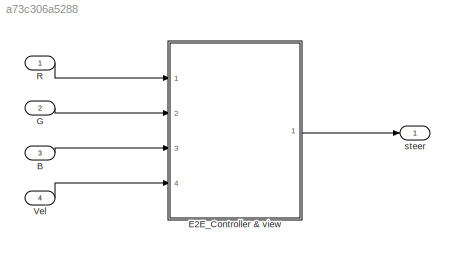
MODEL slx_a73c306a5288
KIND model
BLOCK [Inport] B
  IconDisplay = Port number
  Port = 3
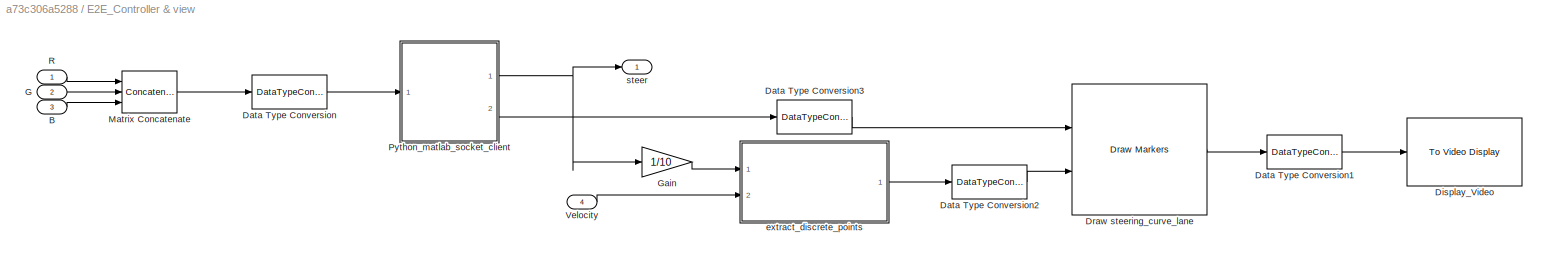
BLOCK [SubSystem] E2E_Controller & view
  Ports = [4, 1]
  RequestExecContextInheritance = off
BLOCK [Inport] E2E_Controller & view/B
  IconDisplay = Port number
  Port = 3
BLOCK [DataTypeConversion] E2E_Controller & view/Data Type Conversion
  OutDataTypeStr = double
  RndMeth = Floor
  SaturateOnIntegerOverflow = off
BLOCK [DataTypeConversion] E2E_Controller & view/Data Type Conversion1
  OutDataTypeStr = uint8
  RndMeth = Floor
  SaturateOnIntegerOverflow = off
BLOCK [DataTypeConversion] E2E_Controller & view/Data Type Conversion2
  OutDataTypeStr = uint8
  RndMeth = Floor
  SaturateOnIntegerOverflow = off
BLOCK [DataTypeConversion] E2E_Controller & view/Data Type Conversion3
  OutDataTypeStr = uint8
  RndMeth = Floor
  SaturateOnIntegerOverflow = off
BLOCK [Reference] E2E_Controller & view/Display_Video  REF=visionsinks/To Video Display
  OutputDevice = On-screen video monitor
  Ports = [1]
  SourceBlock = visionsinks/To Video Display
  SourceType = To Video Display
  dataOrg = Column-major
  fullScreen = off
  imagePorts = One multidimensional signal
  inputColorFormat = RGB
  inputType = Obsolete
  isWindowOpen = off
  openAtMdlStart = on
  saveWindowSize = off
  videoWindowHeight = 120
  videoWindowWidth = 360
  videoWindowX = 258
  videoWindowY = 137
BLOCK [Reference] E2E_Controller & view/Draw steering_curve_lane  REF=visiontextngfix/Draw Markers
  LockScale = off
  Ports = [2, 1]
  SourceBlock = visiontextngfix/Draw Markers
  SourceType = Draw Markers
  accumFracLength = 14
  accumMode = Same as product output
  accumWordLength = 32
  antialiasing = off
  color = [0 0 255]
  display = User-specified value
  fill = on
  fillClrSource = Specify via dialog
  imagePorts = One multidimensional signal
  inType = Obsolete
  intensity = 200
  memoryFracLength = 14
  memoryMode = Specify word length
  memoryWordLength = 16
  opacity = 0.6
  overflowMode = off
  prodOutputFracLength = 14
  prodOutputMode = Binary point scaling
  prodOutputWordLength = 32
  roundingMode = Floor
  shape = Circle
  size = 1
  viewport = Entire image
BLOCK [Inport] E2E_Controller & view/G
  IconDisplay = Port number
  Port = 2
BLOCK [Gain] E2E_Controller & view/Gain
  Gain = 1/10
  OutDataTypeStr = Inherit: Inherit via internal rule
  ParamDataTypeStr = Inherit: Inherit via internal rule
  SaturateOnIntegerOverflow = off
BLOCK [Concatenate] E2E_Controller & view/Matrix Concatenate
  ConcatenateDimension = 3
  Mode = Multidimensional array
  NumInputs = 3
  Ports = [3, 1]
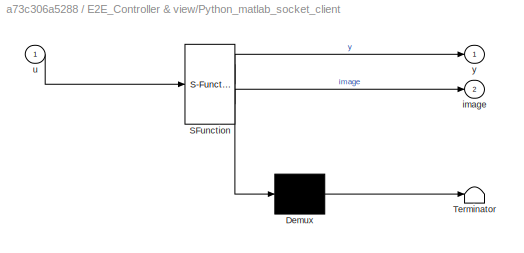
BLOCK [SubSystem] E2E_Controller & view/Python_matlab_socket_client
  ErrorFcn = Stateflow.Translate.translate
  PermitHierarchicalResolution = ExplicitOnly
  Ports = [1, 2]
  RequestExecContextInheritance = off
  SFBlockType = MATLAB Function
  TreatAsAtomicUnit = on
BLOCK [Demux] E2E_Controller & view/Python_matlab_socket_client/ Demux 
  Outputs = 1
  Ports = [1, 1]
BLOCK [S-Function] E2E_Controller & view/Python_matlab_socket_client/ SFunction 
  EnableBusSupport = on
  FunctionName = sf_sfun
  PortCounts = [1 3]
  Ports = [1, 3]
  Tag = Stateflow S-Function end2end_control_view 1
BLOCK [Terminator] E2E_Controller & view/Python_matlab_socket_client/ Terminator 
BLOCK [Outport] E2E_Controller & view/Python_matlab_socket_client/image
  IconDisplay = Port number
  Port = 2
BLOCK [Inport] E2E_Controller & view/Python_matlab_socket_client/u
  IconDisplay = Port number
BLOCK [Outport] E2E_Controller & view/Python_matlab_socket_client/y
  IconDisplay = Port number
BLOCK [Inport] E2E_Controller & view/R
  IconDisplay = Port number
BLOCK [Inport] E2E_Controller & view/Velocity
  IconDisplay = Port number
  Port = 4
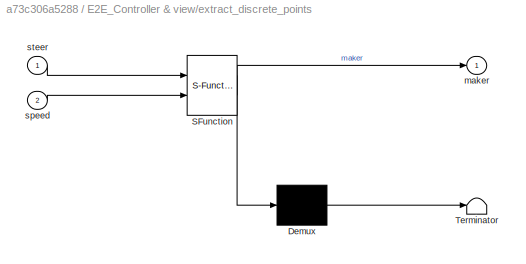
BLOCK [SubSystem] E2E_Controller & view/extract_discrete_points
  ErrorFcn = Stateflow.Translate.translate
  PermitHierarchicalResolution = ExplicitOnly
  Ports = [2, 1]
  RequestExecContextInheritance = off
  SFBlockType = MATLAB Function
  TreatAsAtomicUnit = on
BLOCK [Demux] E2E_Controller & view/extract_discrete_points/ Demux 
  Outputs = 1
  Ports = [1, 1]
BLOCK [S-Function] E2E_Controller & view/extract_discrete_points/ SFunction 
  EnableBusSupport = on
  FunctionName = sf_sfun
  PortCounts = [2 2]
  Ports = [2, 2]
  Tag = Stateflow S-Function end2end_control_view 3
BLOCK [Terminator] E2E_Controller & view/extract_discrete_points/ Terminator 
BLOCK [Outport] E2E_Controller & view/extract_discrete_points/maker
  IconDisplay = Port number
BLOCK [Inport] E2E_Controller & view/extract_discrete_points/speed
  IconDisplay = Port number
  Port = 2
BLOCK [Inport] E2E_Controller & view/extract_discrete_points/steer
  IconDisplay = Port number
BLOCK [Outport] E2E_Controller & view/steer
  IconDisplay = Port number
BLOCK [Inport] G
  IconDisplay = Port number
  Port = 2
BLOCK [Inport] R
  IconDisplay = Port number
BLOCK [Inport] Vel
  IconDisplay = Port number
  Port = 4
BLOCK [Outport] steer
  IconDisplay = Port number
LINE B:1 -> E2E_Controller & view:3
LINE E2E_Controller & view/B:1 -> E2E_Controller & view/Matrix Concatenate:3
LINE E2E_Controller & view/Data Type Conversion1:1 -> E2E_Controller & view/Display_Video:1
LINE E2E_Controller & view/Data Type Conversion2:1 -> E2E_Controller & view/Draw steering_curve_lane:2
LINE E2E_Controller & view/Data Type Conversion3:1 -> E2E_Controller & view/Draw steering_curve_lane:1
LINE E2E_Controller & view/Data Type Conversion:1 -> E2E_Controller & view/Python_matlab_socket_client:1
LINE E2E_Controller & view/Draw steering_curve_lane:1 -> E2E_Controller & view/Data Type Conversion1:1
LINE E2E_Controller & view/G:1 -> E2E_Controller & view/Matrix Concatenate:2
LINE E2E_Controller & view/Gain:1 -> E2E_Controller & view/extract_discrete_points:1
LINE E2E_Controller & view/Matrix Concatenate:1 -> E2E_Controller & view/Data Type Conversion:1
NET E2E_Controller & view/Python_matlab_socket_client:1 -> E2E_Controller & view/Gain:1, E2E_Controller & view/steer:1
LINE E2E_Controller & view/Python_matlab_socket_client:2 -> E2E_Controller & view/Data Type Conversion3:1
LINE E2E_Controller & view/R:1 -> E2E_Controller & view/Matrix Concatenate:1
LINE E2E_Controller & view/Velocity:1 -> E2E_Controller & view/extract_discrete_points:2
LINE E2E_Controller & view/extract_discrete_points:1 -> E2E_Controller & view/Data Type Conversion2:1
LINE E2E_Controller & view:1 -> steer:1
LINE G:1 -> E2E_Controller & view:2
LINE R:1 -> E2E_Controller & view:1
LINE Vel:1 -> E2E_Controller & view:4
note: NET lines group one-source signal fan-out (src -> all destinations, sorted); 1:1 wires keep LINE
